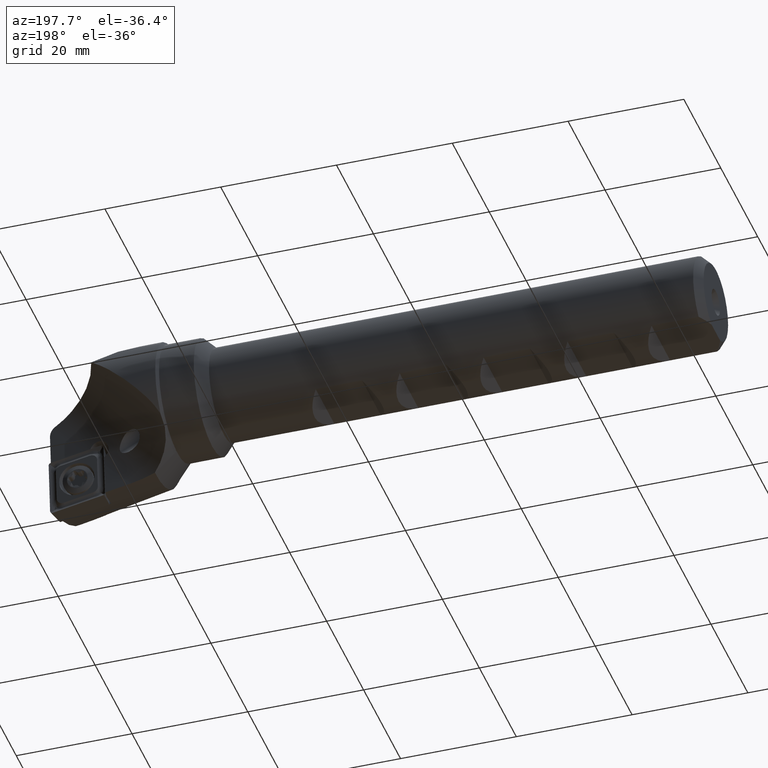
[diagram: clean part render]
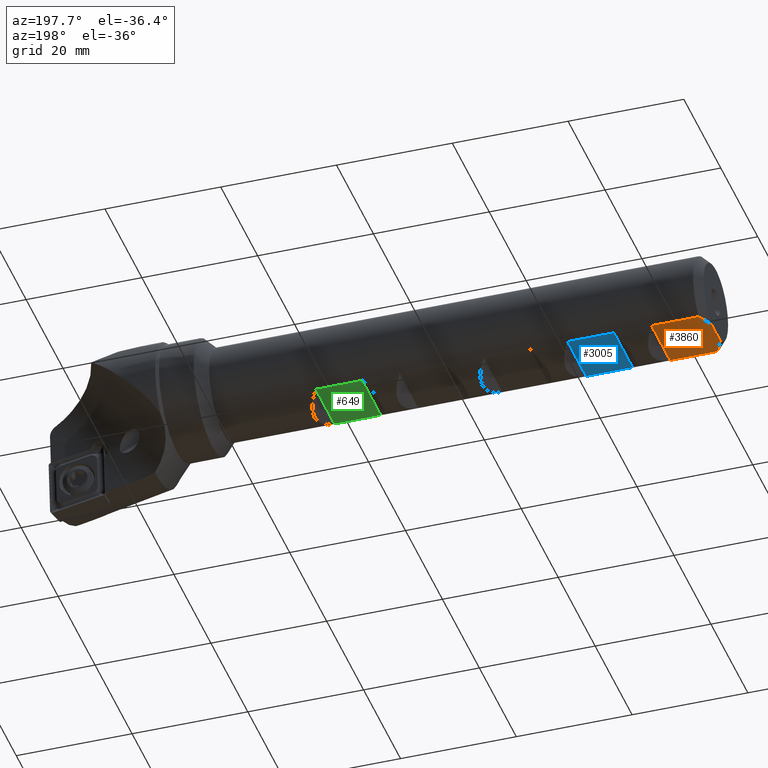
[diagram: same view with three faces highlighted in distinct colors, each labeled with its STEP entity id]
A machine part, auxiliary view with three faces highlighted in distinct colors.
Their STEP definitions:

[orange] entity #3860 — the highlighted planar face has unit normal (-0, 0, 1).
#42 = VERTEX_POINT ( 'NONE', #1413 ) ;
#45 = CARTESIAN_POINT ( 'NONE',  ( 1.102759812682804700, 4.624903649330749800, -6.199999999999995700 ) ) ;
#140 = EDGE_CURVE ( 'NONE', #2203, #1614, #2704, .T. ) ;
#158 = CARTESIAN_POINT ( 'NONE',  ( 1.374999999999999600, -5.055689863905819000, -6.199999999999997500 ) ) ;
#248 = AXIS2_PLACEMENT_3D ( 'NONE', #1889, #3096, #1595 ) ;
#271 = ORIENTED_EDGE ( 'NONE', *, *, #1152, .F. ) ;
#273 = CARTESIAN_POINT ( 'NONE',  ( 0.0000000000000000000, -2.334657362441031400, -6.199999999999997500 ) ) ;
#364 = ORIENTED_EDGE ( 'NONE', *, *, #2875, .F. ) ;
#396 = ORIENTED_EDGE ( 'NONE', *, *, #2042, .F. ) ;
#507 = CARTESIAN_POINT ( 'NONE',  ( -3.175455607189902700, 5.055689863905819000, -6.199999999999997500 ) ) ;
#578 = CARTESIAN_POINT ( 'NONE',  ( 0.1714315222812203600, -2.821124393271456500, -6.199999999999995700 ) ) ;
#620 = DIRECTION ( 'NONE',  ( -0.0000000000000000000, 1.000000000000000000, -0.0000000000000000000 ) ) ;
#805 = CARTESIAN_POINT ( 'NONE',  ( 9.499999999999998200, 5.055689863905817200, -6.199999999999996600 ) ) ;
#853 = CARTESIAN_POINT ( 'NONE',  ( 0.3815471660728584900, -3.286497594889470400, -6.199999999999998400 ) ) ;
#861 = CARTESIAN_POINT ( 'NONE',  ( 1.374999999999999600, -5.055689863905819000, -6.199999999999997500 ) ) ;
#917 = CARTESIAN_POINT ( 'NONE',  ( 2.357445088358658700E-016, 2.334657362441032300, -6.199999999999997500 ) ) ;
#985 = CARTESIAN_POINT ( 'NONE',  ( 0.0000000000000000000, 2.250000000000000000, -6.199999999999997500 ) ) ;
#1146 = VERTEX_POINT ( 'NONE', #917 ) ;
#1152 = EDGE_CURVE ( 'NONE', #3020, #1146, #2934, .T. ) ;
#1191 = CARTESIAN_POINT ( 'NONE',  ( 9.499999999999998200, -16.89999999999999900, -6.199999999999996600 ) ) ;
#1281 = CARTESIAN_POINT ( 'NONE',  ( 2.357445088358658700E-016, 2.334657362441032300, -6.199999999999997500 ) ) ;
#1321 = PLANE ( 'NONE',  #248 ) ;
#1413 = CARTESIAN_POINT ( 'NONE',  ( 9.499999999999998200, -5.055689863905819000, -6.199999999999996600 ) ) ;
#1483 = EDGE_CURVE ( 'NONE', #42, #2261, #3002, .T. ) ;
#1570 = ORIENTED_EDGE ( 'NONE', *, *, #1483, .F. ) ;
#1594 = DIRECTION ( 'NONE',  ( 0.0000000000000000000, -1.000000000000000000, 0.0000000000000000000 ) ) ;
#1595 = DIRECTION ( 'NONE',  ( 1.000000000000000000, 0.0000000000000000000, 9.130123557772670800E-017 ) ) ;
#1614 = VERTEX_POINT ( 'NONE', #158 ) ;
#1754 = DIRECTION ( 'NONE',  ( -1.000000000000000000, -0.0000000000000000000, -0.0000000000000000000 ) ) ;
#1762 = CARTESIAN_POINT ( 'NONE',  ( 1.103883033249896600, -4.626681006086924300, -6.199999999999997500 ) ) ;
#1889 = CARTESIAN_POINT ( 'NONE',  ( 2.357445088358658700E-016, -16.89999999999999900, -6.199999999999997500 ) ) ;
#2042 = EDGE_CURVE ( 'NONE', #1146, #2203, #3088, .T. ) ;
#2090 = CARTESIAN_POINT ( 'NONE',  ( 0.8475333585746163100, -4.189047391212126200, -6.199999999999994800 ) ) ;
#2203 = VERTEX_POINT ( 'NONE', #3447 ) ;
#2261 = VERTEX_POINT ( 'NONE', #805 ) ;
#2393 = VECTOR ( 'NONE', #620, 1000.000000000000000 ) ;
#2449 = CARTESIAN_POINT ( 'NONE',  ( 0.8443957044948030600, 4.183512899218850800, -6.199999999999998400 ) ) ;
#2463 = CARTESIAN_POINT ( 'NONE',  ( 0.1697391835517378700, 2.816322085119876900, -6.199999999999997500 ) ) ;
#2467 = CARTESIAN_POINT ( 'NONE',  ( -3.175455607189902700, -5.055689863905819000, -6.199999999999997500 ) ) ;
#2704 = B_SPLINE_CURVE_WITH_KNOTS ( 'NONE', 3,
 ( #273, #578, #853, #2090, #1762, #861 ),
 .UNSPECIFIED., .F., .F.,
 ( 4, 2, 4 ),
 ( 0.02280706587486892900, 0.02434375454163165800, 0.02588044320839438500 ),
 .UNSPECIFIED. ) ;
#2811 = FACE_OUTER_BOUND ( 'NONE', #3248, .T. ) ;
#2858 = LINE ( 'NONE', #2467, #3083 ) ;
#2875 = EDGE_CURVE ( 'NONE', #1614, #42, #2858, .T. ) ;
#2934 = B_SPLINE_CURVE_WITH_KNOTS ( 'NONE', 3,
 ( #3640, #45, #2449, #3356, #2463, #1281 ),
 .UNSPECIFIED., .F., .F.,
 ( 4, 2, 4 ),
 ( 0.01498964033621598100, 0.01651543360208722700, 0.01804122686795847300 ),
 .UNSPECIFIED. ) ;
#3002 = LINE ( 'NONE', #1191, #2393 ) ;
#3020 = VERTEX_POINT ( 'NONE', #3206 ) ;
#3036 = LINE ( 'NONE', #507, #3128 ) ;
#3083 = VECTOR ( 'NONE', #3371, 1000.000000000000000 ) ;
#3088 = LINE ( 'NONE', #985, #3749 ) ;
#3096 = DIRECTION ( 'NONE',  ( -9.130123557772670800E-017, 0.0000000000000000000, 1.000000000000000000 ) ) ;
#3121 = ORIENTED_EDGE ( 'NONE', *, *, #140, .F. ) ;
#3128 = VECTOR ( 'NONE', #1754, 1000.000000000000000 ) ;
#3137 = EDGE_CURVE ( 'NONE', #2261, #3020, #3036, .T. ) ;
#3206 = CARTESIAN_POINT ( 'NONE',  ( 1.375000000000003600, 5.055689863905846500, -6.199999999999997500 ) ) ;
#3248 = EDGE_LOOP ( 'NONE', ( #1570, #364, #3121, #396, #271, #3333 ) ) ;
#3333 = ORIENTED_EDGE ( 'NONE', *, *, #3137, .F. ) ;
#3356 = CARTESIAN_POINT ( 'NONE',  ( 0.3783296866794281800, 3.279715641321743600, -6.199999999999994800 ) ) ;
#3371 = DIRECTION ( 'NONE',  ( 1.000000000000000000, 0.0000000000000000000, 0.0000000000000000000 ) ) ;
#3447 = CARTESIAN_POINT ( 'NONE',  ( 0.0000000000000000000, -2.334657362441031400, -6.199999999999997500 ) ) ;
#3640 = CARTESIAN_POINT ( 'NONE',  ( 1.375000000000003600, 5.055689863905846500, -6.199999999999997500 ) ) ;
#3749 = VECTOR ( 'NONE', #1594, 1000.000000000000000 ) ;
#3860 = ADVANCED_FACE ( 'NONE', ( #2811 ), #1321, .F. ) ;

[blue] entity #3005 — the highlighted planar face has unit normal (0, 0, 1).
#36 = ORIENTED_EDGE ( 'NONE', *, *, #1994, .T. ) ;
#93 = CARTESIAN_POINT ( 'NONE',  ( 24.00000000000000000, -5.055689863905819000, -6.199999999999997500 ) ) ;
#183 = DIRECTION ( 'NONE',  ( 1.000000000000000000, 0.0000000000000000000, 0.0000000000000000000 ) ) ;
#253 = EDGE_CURVE ( 'NONE', #1364, #433, #3373, .T. ) ;
#433 = VERTEX_POINT ( 'NONE', #93 ) ;
#470 = ORIENTED_EDGE ( 'NONE', *, *, #253, .F. ) ;
#473 = ORIENTED_EDGE ( 'NONE', *, *, #3251, .F. ) ;
#717 = LINE ( 'NONE', #1941, #3588 ) ;
#773 = DIRECTION ( 'NONE',  ( -0.0000000000000000000, 0.0000000000000000000, 1.000000000000000000 ) ) ;
#877 = VERTEX_POINT ( 'NONE', #3070 ) ;
#946 = DIRECTION ( 'NONE',  ( 1.000000000000000000, 0.0000000000000000000, 0.0000000000000000000 ) ) ;
#1044 = CARTESIAN_POINT ( 'NONE',  ( 16.00000000000000000, -16.89999999999999900, -6.199999999999997500 ) ) ;
#1056 = CARTESIAN_POINT ( 'NONE',  ( 16.00000000000000000, -5.055689863905819000, -6.199999999999997500 ) ) ;
#1288 = CARTESIAN_POINT ( 'NONE',  ( 24.00000000000000000, -16.89999999999999900, -6.199999999999997500 ) ) ;
#1291 = DIRECTION ( 'NONE',  ( -0.0000000000000000000, 1.000000000000000000, -0.0000000000000000000 ) ) ;
#1364 = VERTEX_POINT ( 'NONE', #1056 ) ;
#1389 = VERTEX_POINT ( 'NONE', #2870 ) ;
#1625 = AXIS2_PLACEMENT_3D ( 'NONE', #1044, #773, #183 ) ;
#1843 = CARTESIAN_POINT ( 'NONE',  ( -3.175455607189903200, -5.055689863905819000, -6.199999999999997500 ) ) ;
#1941 = CARTESIAN_POINT ( 'NONE',  ( -3.175455607189903200, 5.055689863905819000, -6.199999999999997500 ) ) ;
#1994 = EDGE_CURVE ( 'NONE', #1364, #1389, #3648, .T. ) ;
#2053 = LINE ( 'NONE', #1288, #2245 ) ;
#2170 = ORIENTED_EDGE ( 'NONE', *, *, #3696, .F. ) ;
#2245 = VECTOR ( 'NONE', #2800, 1000.000000000000000 ) ;
#2384 = FACE_OUTER_BOUND ( 'NONE', #2386, .T. ) ;
#2386 = EDGE_LOOP ( 'NONE', ( #473, #470, #36, #2170 ) ) ;
#2800 = DIRECTION ( 'NONE',  ( -0.0000000000000000000, 1.000000000000000000, -0.0000000000000000000 ) ) ;
#2865 = VECTOR ( 'NONE', #1291, 1000.000000000000000 ) ;
#2870 = CARTESIAN_POINT ( 'NONE',  ( 16.00000000000000000, 5.055689863905817200, -6.199999999999997500 ) ) ;
#3005 = ADVANCED_FACE ( 'NONE', ( #2384 ), #3463, .F. ) ;
#3070 = CARTESIAN_POINT ( 'NONE',  ( 24.00000000000000000, 5.055689863905817200, -6.199999999999997500 ) ) ;
#3095 = CARTESIAN_POINT ( 'NONE',  ( 16.00000000000000000, -16.89999999999999900, -6.199999999999997500 ) ) ;
#3143 = DIRECTION ( 'NONE',  ( -1.000000000000000000, -0.0000000000000000000, -0.0000000000000000000 ) ) ;
#3251 = EDGE_CURVE ( 'NONE', #433, #877, #2053, .T. ) ;
#3373 = LINE ( 'NONE', #1843, #3811 ) ;
#3463 = PLANE ( 'NONE',  #1625 ) ;
#3588 = VECTOR ( 'NONE', #3143, 1000.000000000000000 ) ;
#3648 = LINE ( 'NONE', #3095, #2865 ) ;
#3696 = EDGE_CURVE ( 'NONE', #877, #1389, #717, .T. ) ;
#3811 = VECTOR ( 'NONE', #946, 1000.000000000000000 ) ;

[green] entity #649 — the highlighted planar face has unit normal (0, 0, 1).
#184 = VERTEX_POINT ( 'NONE', #903 ) ;
#195 = DIRECTION ( 'NONE',  ( -0.0000000000000000000, 0.0000000000000000000, 1.000000000000000000 ) ) ;
#236 = EDGE_CURVE ( 'NONE', #2730, #184, #1119, .T. ) ;
#352 = CARTESIAN_POINT ( 'NONE',  ( 59.50000000000000700, -16.89999999999999900, -6.199999999999997500 ) ) ;
#411 = EDGE_CURVE ( 'NONE', #2730, #2884, #3283, .T. ) ;
#463 = DIRECTION ( 'NONE',  ( -0.0000000000000000000, 1.000000000000000000, -0.0000000000000000000 ) ) ;
#517 = CARTESIAN_POINT ( 'NONE',  ( 59.50000000000000700, -5.055689863905817200, -6.199999999999997500 ) ) ;
#556 = DIRECTION ( 'NONE',  ( 1.000000000000000000, 0.0000000000000000000, 0.0000000000000000000 ) ) ;
#582 = ORIENTED_EDGE ( 'NONE', *, *, #3397, .F. ) ;
#649 = ADVANCED_FACE ( 'NONE', ( #1366 ), #840, .F. ) ;
#819 = LINE ( 'NONE', #3073, #863 ) ;
#840 = PLANE ( 'NONE',  #3567 ) ;
#863 = VECTOR ( 'NONE', #3710, 1000.000000000000000 ) ;
#903 = CARTESIAN_POINT ( 'NONE',  ( 59.50000000000000700, 5.055689863905817200, -6.199999999999997500 ) ) ;
#1119 = LINE ( 'NONE', #352, #1873 ) ;
#1324 = CARTESIAN_POINT ( 'NONE',  ( -3.175455607189903200, -5.055689863905819000, -6.199999999999997500 ) ) ;
#1366 = FACE_OUTER_BOUND ( 'NONE', #1477, .T. ) ;
#1463 = CARTESIAN_POINT ( 'NONE',  ( 59.50000000000000700, -16.89999999999999900, -6.199999999999997500 ) ) ;
#1467 = CARTESIAN_POINT ( 'NONE',  ( 67.50000000000000000, 5.055689863905817200, -6.199999999999997500 ) ) ;
#1477 = EDGE_LOOP ( 'NONE', ( #582, #2684, #3585, #3111 ) ) ;
#1540 = VECTOR ( 'NONE', #463, 1000.000000000000000 ) ;
#1730 = LINE ( 'NONE', #2585, #1540 ) ;
#1743 = VECTOR ( 'NONE', #2486, 1000.000000000000000 ) ;
#1873 = VECTOR ( 'NONE', #2761, 1000.000000000000000 ) ;
#2062 = EDGE_CURVE ( 'NONE', #3740, #184, #819, .T. ) ;
#2161 = CARTESIAN_POINT ( 'NONE',  ( 67.50000000000000000, -5.055689863905819000, -6.199999999999997500 ) ) ;
#2486 = DIRECTION ( 'NONE',  ( 1.000000000000000000, 0.0000000000000000000, 0.0000000000000000000 ) ) ;
#2585 = CARTESIAN_POINT ( 'NONE',  ( 67.50000000000000000, -16.89999999999999900, -6.199999999999997500 ) ) ;
#2684 = ORIENTED_EDGE ( 'NONE', *, *, #411, .F. ) ;
#2730 = VERTEX_POINT ( 'NONE', #517 ) ;
#2761 = DIRECTION ( 'NONE',  ( -0.0000000000000000000, 1.000000000000000000, -0.0000000000000000000 ) ) ;
#2884 = VERTEX_POINT ( 'NONE', #2161 ) ;
#3073 = CARTESIAN_POINT ( 'NONE',  ( -3.175455607189903200, 5.055689863905819000, -6.199999999999997500 ) ) ;
#3111 = ORIENTED_EDGE ( 'NONE', *, *, #2062, .F. ) ;
#3283 = LINE ( 'NONE', #1324, #1743 ) ;
#3397 = EDGE_CURVE ( 'NONE', #2884, #3740, #1730, .T. ) ;
#3567 = AXIS2_PLACEMENT_3D ( 'NONE', #1463, #195, #556 ) ;
#3585 = ORIENTED_EDGE ( 'NONE', *, *, #236, .T. ) ;
#3710 = DIRECTION ( 'NONE',  ( -1.000000000000000000, -0.0000000000000000000, -0.0000000000000000000 ) ) ;
#3740 = VERTEX_POINT ( 'NONE', #1467 ) ;